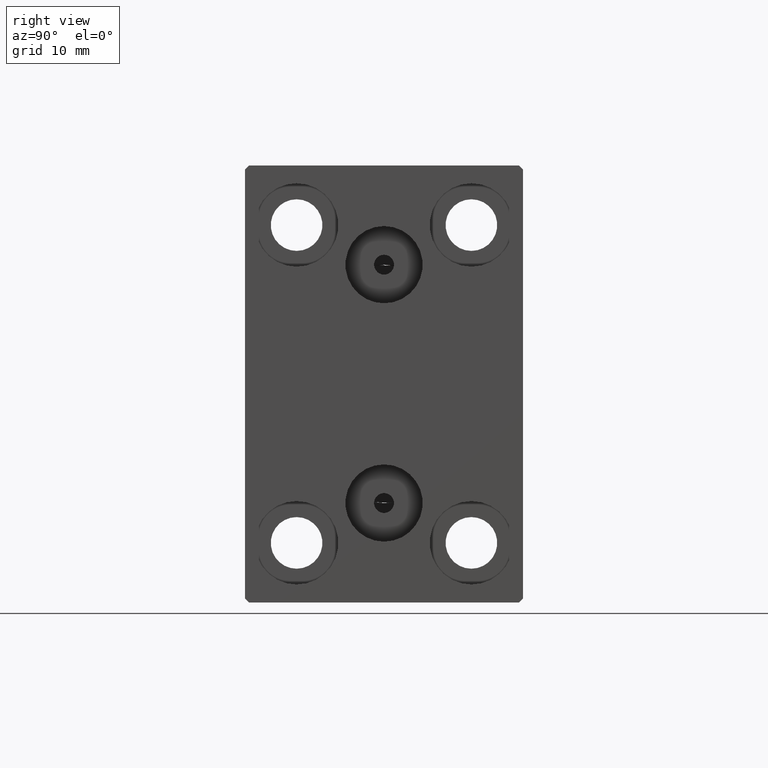
[diagram: clean part render]
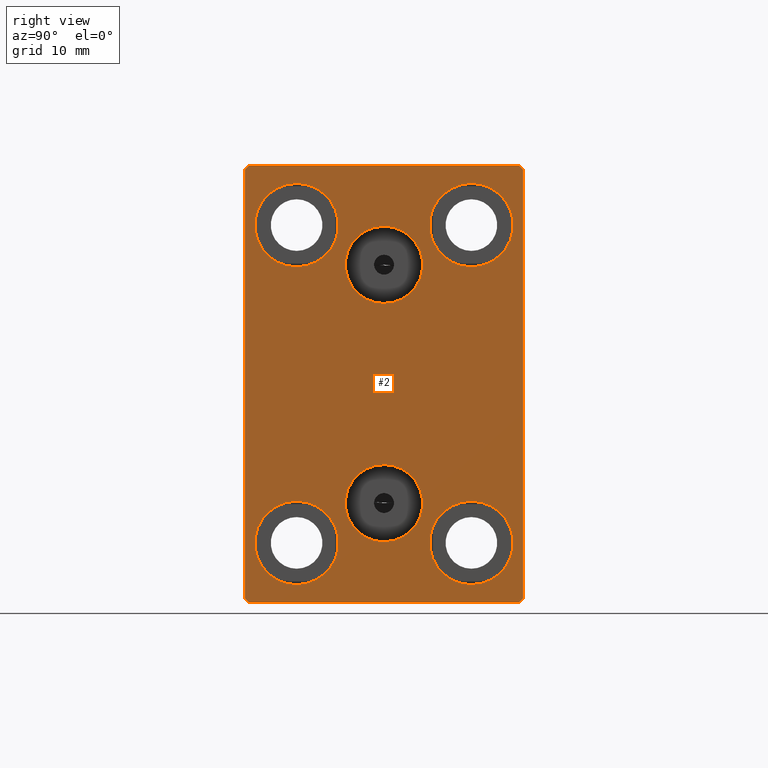
[diagram: same view with one face highlighted and labeled with its STEP entity id]
A machine part, right view. The second image highlights one B-rep face of the part: STEP entity #2.
In plain terms, the highlighted planar face has unit normal (1, 0, 0).
Its self-contained STEP definition (entity closure, byte-faithful):
#2 = ADVANCED_FACE ( 'NONE', ( #43830, #13395, #33832, #28041, #544, #10522, #27392 ), #17393, .T. ) ;
#96 = AXIS2_PLACEMENT_3D ( 'NONE', #25769, #32220, #1168 ) ;
#217 = AXIS2_PLACEMENT_3D ( 'NONE', #37374, #14041, #34038 ) ;
#231 = VERTEX_POINT ( 'NONE', #16462 ) ;
#495 = VERTEX_POINT ( 'NONE', #39069 ) ;
#544 = FACE_BOUND ( 'NONE', #27630, .T. ) ;
#1168 = DIRECTION ( 'NONE',  ( 0.000000000000000000, 0.000000000000000000, 1.000000000000000000 ) ) ;
#1386 = DIRECTION ( 'NONE',  ( -1.000000000000000000, -0.000000000000000000, -0.000000000000000000 ) ) ;
#1397 = EDGE_CURVE ( 'NONE', #25184, #18888, #26634, .T. ) ;
#1708 = CARTESIAN_POINT ( 'NONE',  ( 56.00000000000000000, 11.00000000000000355, 25.25000000000000000 ) ) ;
#2044 = EDGE_CURVE ( 'NONE', #8479, #40167, #30148, .T. ) ;
#2486 = VERTEX_POINT ( 'NONE', #12079 ) ;
#2712 = DIRECTION ( 'NONE',  ( -0.000000000000000000, -0.7071067811865474617, 0.7071067811865474617 ) ) ;
#2910 = EDGE_CURVE ( 'NONE', #10104, #24010, #13880, .T. ) ;
#3117 = AXIS2_PLACEMENT_3D ( 'NONE', #9816, #6254, #19119 ) ;
#3410 = EDGE_LOOP ( 'NONE', ( #3718, #33026 ) ) ;
#3674 = CARTESIAN_POINT ( 'NONE',  ( 56.00000000000000000, 17.50000000000000711, -27.50000000000000355 ) ) ;
#3718 = ORIENTED_EDGE ( 'NONE', *, *, #2044, .F. ) ;
#4049 = LINE ( 'NONE', #17576, #6538 ) ;
#4082 = CARTESIAN_POINT ( 'NONE',  ( 56.00000000000000000, 0.000000000000000000, 0.000000000000000000 ) ) ;
#4637 = AXIS2_PLACEMENT_3D ( 'NONE', #24205, #41091, #11532 ) ;
#4721 = CARTESIAN_POINT ( 'NONE',  ( 56.00000000000000000, -11.00000000000000355, -20.00000000000000000 ) ) ;
#5163 = VERTEX_POINT ( 'NONE', #6824 ) ;
#6254 = DIRECTION ( 'NONE',  ( -1.000000000000000000, -0.000000000000000000, -0.000000000000000000 ) ) ;
#6372 = ORIENTED_EDGE ( 'NONE', *, *, #28609, .T. ) ;
#6402 = CARTESIAN_POINT ( 'NONE',  ( 56.00000000000000000, -16.99999999999999289, -27.50000000000000355 ) ) ;
#6436 = CIRCLE ( 'NONE', #41224, 5.250000000000000888 ) ;
#6538 = VECTOR ( 'NONE', #38026, 1000.000000000000000 ) ;
#6824 = CARTESIAN_POINT ( 'NONE',  ( 56.00000000000000000, -11.00000000000000355, 14.75000000000000000 ) ) ;
#7196 = CARTESIAN_POINT ( 'NONE',  ( 56.00000000000000000, 11.00000000000000355, 14.75000000000000000 ) ) ;
#7442 = ORIENTED_EDGE ( 'NONE', *, *, #37590, .T. ) ;
#7464 = VECTOR ( 'NONE', #36188, 1000.000000000000000 ) ;
#7649 = CARTESIAN_POINT ( 'NONE',  ( 56.00000000000000000, -11.00000000000000355, 25.25000000000000000 ) ) ;
#7837 = VECTOR ( 'NONE', #16867, 1000.000000000000000 ) ;
#8373 = CARTESIAN_POINT ( 'NONE',  ( 56.00000000000000000, -1.836970198721029589E-15, 15.00000000000000000 ) ) ;
#8478 = CARTESIAN_POINT ( 'NONE',  ( 56.00000000000000000, 22.25000000000000355, 22.25000000000000355 ) ) ;
#8479 = VERTEX_POINT ( 'NONE', #30204 ) ;
#8718 = VECTOR ( 'NONE', #25521, 1000.000000000000114 ) ;
#8946 = CARTESIAN_POINT ( 'NONE',  ( 56.00000000000000000, -11.00000000000000355, -25.25000000000000000 ) ) ;
#9329 = CARTESIAN_POINT ( 'NONE',  ( 56.00000000000000000, 17.50000000000000000, 27.50000000000000355 ) ) ;
#9570 = LINE ( 'NONE', #16653, #7837 ) ;
#9605 = CARTESIAN_POINT ( 'NONE',  ( 56.00000000000000000, -11.00000000000000355, 20.00000000000000000 ) ) ;
#9640 = ORIENTED_EDGE ( 'NONE', *, *, #37754, .F. ) ;
#9816 = CARTESIAN_POINT ( 'NONE',  ( 56.00000000000000000, 11.00000000000000355, 20.00000000000000000 ) ) ;
#9968 = CIRCLE ( 'NONE', #32641, 5.250000000000000888 ) ;
#10104 = VERTEX_POINT ( 'NONE', #8946 ) ;
#10306 = DIRECTION ( 'NONE',  ( 0.000000000000000000, 0.000000000000000000, -1.000000000000000000 ) ) ;
#10522 = FACE_BOUND ( 'NONE', #36983, .T. ) ;
#10572 = EDGE_CURVE ( 'NONE', #10927, #33820, #34527, .T. ) ;
#10827 = ORIENTED_EDGE ( 'NONE', *, *, #15915, .T. ) ;
#10927 = VERTEX_POINT ( 'NONE', #18879 ) ;
#11532 = DIRECTION ( 'NONE',  ( 0.000000000000000000, 0.000000000000000000, 1.000000000000000000 ) ) ;
#11786 = AXIS2_PLACEMENT_3D ( 'NONE', #4082, #18043, #10306 ) ;
#12079 = CARTESIAN_POINT ( 'NONE',  ( 56.00000000000000000, 17.00000000000000711, -27.50000000000000355 ) ) ;
#12111 = VERTEX_POINT ( 'NONE', #6402 ) ;
#13134 = CARTESIAN_POINT ( 'NONE',  ( 56.00000000000000000, -1.139545131591193817E-15, -10.14000000000000057 ) ) ;
#13146 = ORIENTED_EDGE ( 'NONE', *, *, #32929, .T. ) ;
#13395 = FACE_BOUND ( 'NONE', #3410, .T. ) ;
#13840 = EDGE_LOOP ( 'NONE', ( #20393, #6372 ) ) ;
#13880 = CIRCLE ( 'NONE', #38000, 5.250000000000000888 ) ;
#14041 = DIRECTION ( 'NONE',  ( -1.000000000000000000, -0.000000000000000000, -0.000000000000000000 ) ) ;
#14119 = AXIS2_PLACEMENT_3D ( 'NONE', #21935, #35496, #18825 ) ;
#14507 = AXIS2_PLACEMENT_3D ( 'NONE', #32126, #21891, #42562 ) ;
#14619 = VERTEX_POINT ( 'NONE', #7649 ) ;
#14878 = LINE ( 'NONE', #42633, #8718 ) ;
#14898 = DIRECTION ( 'NONE',  ( 0.000000000000000000, 0.000000000000000000, 1.000000000000000000 ) ) ;
#15115 = CARTESIAN_POINT ( 'NONE',  ( 56.00000000000000000, -1.241791854335416311E-15, 19.85999999999999943 ) ) ;
#15317 = CARTESIAN_POINT ( 'NONE',  ( 56.00000000000000000, 11.00000000000000355, -20.00000000000000000 ) ) ;
#15332 = CARTESIAN_POINT ( 'NONE',  ( 56.00000000000000000, -11.00000000000000355, 20.00000000000000000 ) ) ;
#15915 = EDGE_CURVE ( 'NONE', #21459, #17138, #9570, .T. ) ;
#15986 = DIRECTION ( 'NONE',  ( 0.000000000000000000, 0.000000000000000000, 1.000000000000000000 ) ) ;
#16164 = CARTESIAN_POINT ( 'NONE',  ( 56.00000000000000000, -22.24999999999999645, 22.24999999999999645 ) ) ;
#16462 = CARTESIAN_POINT ( 'NONE',  ( 56.00000000000000000, 11.00000000000000355, -14.75000000000000000 ) ) ;
#16653 = CARTESIAN_POINT ( 'NONE',  ( 56.00000000000000000, -17.50000000000000000, 27.49999999999999645 ) ) ;
#16867 = DIRECTION ( 'NONE',  ( 0.000000000000000000, 0.000000000000000000, -1.000000000000000000 ) ) ;
#16914 = EDGE_CURVE ( 'NONE', #23629, #26677, #21906, .T. ) ;
#17138 = VERTEX_POINT ( 'NONE', #41891 ) ;
#17393 = PLANE ( 'NONE',  #11786 ) ;
#17576 = CARTESIAN_POINT ( 'NONE',  ( 56.00000000000000000, -17.50000000000000000, -27.50000000000000355 ) ) ;
#18038 = DIRECTION ( 'NONE',  ( -1.000000000000000000, -0.000000000000000000, -0.000000000000000000 ) ) ;
#18043 = DIRECTION ( 'NONE',  ( 1.000000000000000000, 0.000000000000000000, 0.000000000000000000 ) ) ;
#18118 = ORIENTED_EDGE ( 'NONE', *, *, #36551, .T. ) ;
#18582 = VECTOR ( 'NONE', #23264, 1000.000000000000114 ) ;
#18619 = CIRCLE ( 'NONE', #217, 5.250000000000000888 ) ;
#18825 = DIRECTION ( 'NONE',  ( 0.000000000000000000, 0.000000000000000000, 1.000000000000000000 ) ) ;
#18879 = CARTESIAN_POINT ( 'NONE',  ( 56.00000000000000000, 17.50000000000000711, -27.00000000000000355 ) ) ;
#18888 = VERTEX_POINT ( 'NONE', #29423 ) ;
#19119 = DIRECTION ( 'NONE',  ( 0.000000000000000000, 0.000000000000000000, 1.000000000000000000 ) ) ;
#19469 = ORIENTED_EDGE ( 'NONE', *, *, #40166, .T. ) ;
#19501 = LINE ( 'NONE', #16164, #18582 ) ;
#20393 = ORIENTED_EDGE ( 'NONE', *, *, #27824, .T. ) ;
#20537 = EDGE_LOOP ( 'NONE', ( #9640, #23016 ) ) ;
#20713 = CARTESIAN_POINT ( 'NONE',  ( 56.00000000000000000, -1.836970198721029589E-15, 15.00000000000000000 ) ) ;
#21406 = AXIS2_PLACEMENT_3D ( 'NONE', #20713, #40732, #34283 ) ;
#21459 = VERTEX_POINT ( 'NONE', #41093 ) ;
#21684 = DIRECTION ( 'NONE',  ( 1.000000000000000000, 0.000000000000000000, 0.000000000000000000 ) ) ;
#21891 = DIRECTION ( 'NONE',  ( 1.000000000000000000, 0.000000000000000000, -0.000000000000000000 ) ) ;
#21906 = CIRCLE ( 'NONE', #14119, 5.250000000000000888 ) ;
#21935 = CARTESIAN_POINT ( 'NONE',  ( 56.00000000000000000, 11.00000000000000355, 20.00000000000000000 ) ) ;
#22305 = ORIENTED_EDGE ( 'NONE', *, *, #40447, .T. ) ;
#23016 = ORIENTED_EDGE ( 'NONE', *, *, #24928, .F. ) ;
#23264 = DIRECTION ( 'NONE',  ( 0.000000000000000000, -0.7071067811865474617, -0.7071067811865474617 ) ) ;
#23629 = VERTEX_POINT ( 'NONE', #1708 ) ;
#23847 = ORIENTED_EDGE ( 'NONE', *, *, #31065, .T. ) ;
#24010 = VERTEX_POINT ( 'NONE', #36726 ) ;
#24205 = CARTESIAN_POINT ( 'NONE',  ( 56.00000000000000000, -1.734723475976807094E-15, -15.00000000000000000 ) ) ;
#24907 = ORIENTED_EDGE ( 'NONE', *, *, #1397, .T. ) ;
#24928 = EDGE_CURVE ( 'NONE', #28567, #495, #30617, .T. ) ;
#25125 = DIRECTION ( 'NONE',  ( 0.000000000000000000, 0.000000000000000000, 1.000000000000000000 ) ) ;
#25184 = VERTEX_POINT ( 'NONE', #30444 ) ;
#25301 = CARTESIAN_POINT ( 'NONE',  ( 56.00000000000000000, 17.50000000000000000, 26.99999999999999645 ) ) ;
#25379 = CARTESIAN_POINT ( 'NONE',  ( 56.00000000000000000, 11.00000000000000355, -25.25000000000000000 ) ) ;
#25521 = DIRECTION ( 'NONE',  ( -0.000000000000000000, 0.7071067811865474617, 0.7071067811865474617 ) ) ;
#25687 = AXIS2_PLACEMENT_3D ( 'NONE', #8373, #21684, #35457 ) ;
#25769 = CARTESIAN_POINT ( 'NONE',  ( 56.00000000000000000, 11.00000000000000355, -20.00000000000000000 ) ) ;
#25970 = DIRECTION ( 'NONE',  ( -1.000000000000000000, -0.000000000000000000, -0.000000000000000000 ) ) ;
#26018 = DIRECTION ( 'NONE',  ( 0.000000000000000000, 0.000000000000000000, 1.000000000000000000 ) ) ;
#26134 = EDGE_CURVE ( 'NONE', #14619, #5163, #9968, .T. ) ;
#26634 = LINE ( 'NONE', #9329, #7464 ) ;
#26677 = VERTEX_POINT ( 'NONE', #7196 ) ;
#26982 = DIRECTION ( 'NONE',  ( 0.000000000000000000, -1.261617073437677752E-16, 1.000000000000000000 ) ) ;
#27392 = FACE_OUTER_BOUND ( 'NONE', #33539, .T. ) ;
#27630 = EDGE_LOOP ( 'NONE', ( #19469, #38279 ) ) ;
#27824 = EDGE_CURVE ( 'NONE', #32742, #231, #6436, .T. ) ;
#28041 = FACE_BOUND ( 'NONE', #29794, .T. ) ;
#28428 = CIRCLE ( 'NONE', #96, 5.250000000000000888 ) ;
#28454 = EDGE_CURVE ( 'NONE', #5163, #14619, #41905, .T. ) ;
#28567 = VERTEX_POINT ( 'NONE', #15115 ) ;
#28609 = EDGE_CURVE ( 'NONE', #231, #32742, #28428, .T. ) ;
#29343 = ORIENTED_EDGE ( 'NONE', *, *, #2910, .T. ) ;
#29423 = CARTESIAN_POINT ( 'NONE',  ( 56.00000000000000000, -16.99999999999999289, 27.49999999999999645 ) ) ;
#29583 = DIRECTION ( 'NONE',  ( -1.000000000000000000, -0.000000000000000000, -0.000000000000000000 ) ) ;
#29717 = ORIENTED_EDGE ( 'NONE', *, *, #33862, .T. ) ;
#29794 = EDGE_LOOP ( 'NONE', ( #41173, #42556 ) ) ;
#30148 = CIRCLE ( 'NONE', #4637, 4.859999999999999432 ) ;
#30204 = CARTESIAN_POINT ( 'NONE',  ( 56.00000000000000000, -1.734723475976807094E-15, -19.85999999999999943 ) ) ;
#30444 = CARTESIAN_POINT ( 'NONE',  ( 56.00000000000000000, 16.99999999999999289, 27.50000000000000355 ) ) ;
#30617 = CIRCLE ( 'NONE', #21406, 4.859999999999999432 ) ;
#31065 = EDGE_CURVE ( 'NONE', #12111, #2486, #4049, .T. ) ;
#31968 = DIRECTION ( 'NONE',  ( -0.000000000000000000, 0.7071067811865474617, -0.7071067811865474617 ) ) ;
#32126 = CARTESIAN_POINT ( 'NONE',  ( 56.00000000000000000, -1.734723475976807094E-15, -15.00000000000000000 ) ) ;
#32220 = DIRECTION ( 'NONE',  ( -1.000000000000000000, -0.000000000000000000, -0.000000000000000000 ) ) ;
#32641 = AXIS2_PLACEMENT_3D ( 'NONE', #9605, #29583, #26018 ) ;
#32679 = AXIS2_PLACEMENT_3D ( 'NONE', #15332, #1386, #14898 ) ;
#32742 = VERTEX_POINT ( 'NONE', #25379 ) ;
#32929 = EDGE_CURVE ( 'NONE', #24010, #10104, #18619, .T. ) ;
#33026 = ORIENTED_EDGE ( 'NONE', *, *, #42257, .F. ) ;
#33463 = ORIENTED_EDGE ( 'NONE', *, *, #10572, .T. ) ;
#33539 = EDGE_LOOP ( 'NONE', ( #24907, #18118, #10827, #22305, #23847, #29717, #33463, #7442 ) ) ;
#33663 = CIRCLE ( 'NONE', #14507, 4.859999999999999432 ) ;
#33820 = VERTEX_POINT ( 'NONE', #25301 ) ;
#33832 = FACE_BOUND ( 'NONE', #13840, .T. ) ;
#33862 = EDGE_CURVE ( 'NONE', #2486, #10927, #14878, .T. ) ;
#34038 = DIRECTION ( 'NONE',  ( 0.000000000000000000, 0.000000000000000000, 1.000000000000000000 ) ) ;
#34283 = DIRECTION ( 'NONE',  ( 0.000000000000000000, 0.000000000000000000, -1.000000000000000000 ) ) ;
#34527 = LINE ( 'NONE', #3674, #39601 ) ;
#35457 = DIRECTION ( 'NONE',  ( 0.000000000000000000, 0.000000000000000000, -1.000000000000000000 ) ) ;
#35496 = DIRECTION ( 'NONE',  ( -1.000000000000000000, -0.000000000000000000, -0.000000000000000000 ) ) ;
#35515 = LINE ( 'NONE', #38640, #39239 ) ;
#36188 = DIRECTION ( 'NONE',  ( 0.000000000000000000, -1.000000000000000000, -1.982541115402065110E-16 ) ) ;
#36551 = EDGE_CURVE ( 'NONE', #18888, #21459, #19501, .T. ) ;
#36726 = CARTESIAN_POINT ( 'NONE',  ( 56.00000000000000000, -11.00000000000000355, -14.75000000000000000 ) ) ;
#36983 = EDGE_LOOP ( 'NONE', ( #29343, #13146 ) ) ;
#37374 = CARTESIAN_POINT ( 'NONE',  ( 56.00000000000000000, -11.00000000000000355, -20.00000000000000000 ) ) ;
#37590 = EDGE_CURVE ( 'NONE', #33820, #25184, #39119, .T. ) ;
#37754 = EDGE_CURVE ( 'NONE', #495, #28567, #41309, .T. ) ;
#38000 = AXIS2_PLACEMENT_3D ( 'NONE', #4721, #18038, #25125 ) ;
#38026 = DIRECTION ( 'NONE',  ( 0.000000000000000000, 1.000000000000000000, 0.000000000000000000 ) ) ;
#38279 = ORIENTED_EDGE ( 'NONE', *, *, #16914, .T. ) ;
#38640 = CARTESIAN_POINT ( 'NONE',  ( 56.00000000000000000, -22.25000000000000355, -22.25000000000000355 ) ) ;
#39069 = CARTESIAN_POINT ( 'NONE',  ( 56.00000000000000000, -1.836970198721029589E-15, 10.14000000000000057 ) ) ;
#39119 = LINE ( 'NONE', #8478, #39177 ) ;
#39177 = VECTOR ( 'NONE', #2712, 1000.000000000000114 ) ;
#39239 = VECTOR ( 'NONE', #31968, 1000.000000000000114 ) ;
#39601 = VECTOR ( 'NONE', #26982, 1000.000000000000000 ) ;
#40166 = EDGE_CURVE ( 'NONE', #26677, #23629, #42787, .T. ) ;
#40167 = VERTEX_POINT ( 'NONE', #13134 ) ;
#40447 = EDGE_CURVE ( 'NONE', #17138, #12111, #35515, .T. ) ;
#40732 = DIRECTION ( 'NONE',  ( 1.000000000000000000, 0.000000000000000000, 0.000000000000000000 ) ) ;
#41091 = DIRECTION ( 'NONE',  ( 1.000000000000000000, 0.000000000000000000, -0.000000000000000000 ) ) ;
#41093 = CARTESIAN_POINT ( 'NONE',  ( 56.00000000000000000, -17.50000000000000000, 26.99999999999998934 ) ) ;
#41173 = ORIENTED_EDGE ( 'NONE', *, *, #28454, .T. ) ;
#41224 = AXIS2_PLACEMENT_3D ( 'NONE', #15317, #25970, #15986 ) ;
#41309 = CIRCLE ( 'NONE', #25687, 4.859999999999999432 ) ;
#41891 = CARTESIAN_POINT ( 'NONE',  ( 56.00000000000000000, -17.50000000000000000, -26.99999999999999645 ) ) ;
#41905 = CIRCLE ( 'NONE', #32679, 5.250000000000000888 ) ;
#42257 = EDGE_CURVE ( 'NONE', #40167, #8479, #33663, .T. ) ;
#42556 = ORIENTED_EDGE ( 'NONE', *, *, #26134, .T. ) ;
#42562 = DIRECTION ( 'NONE',  ( 0.000000000000000000, 0.000000000000000000, 1.000000000000000000 ) ) ;
#42633 = CARTESIAN_POINT ( 'NONE',  ( 56.00000000000000000, 22.25000000000000711, -22.25000000000000711 ) ) ;
#42787 = CIRCLE ( 'NONE', #3117, 5.250000000000000888 ) ;
#43830 = FACE_BOUND ( 'NONE', #20537, .T. ) ;